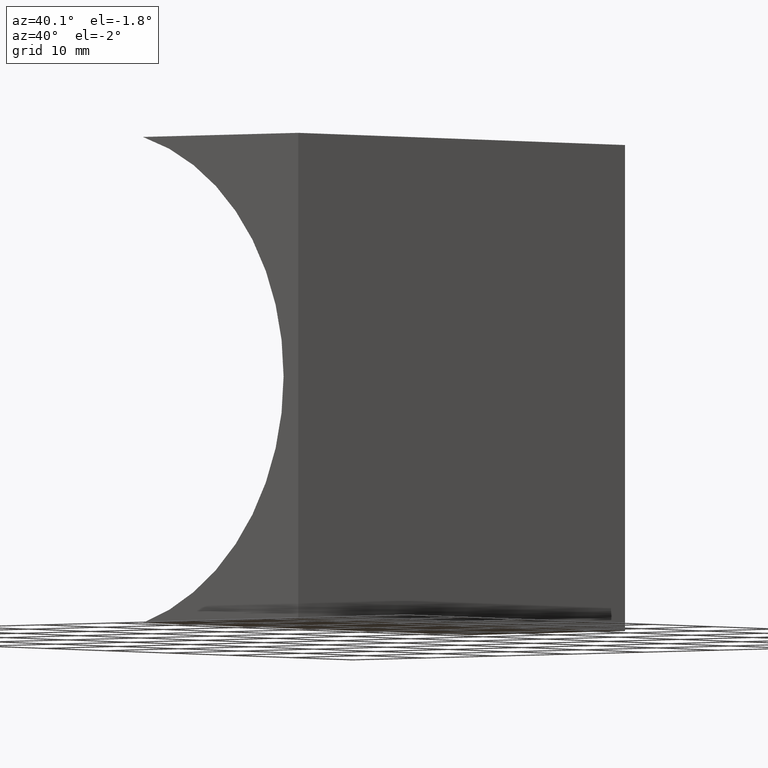
[diagram: clean part render]
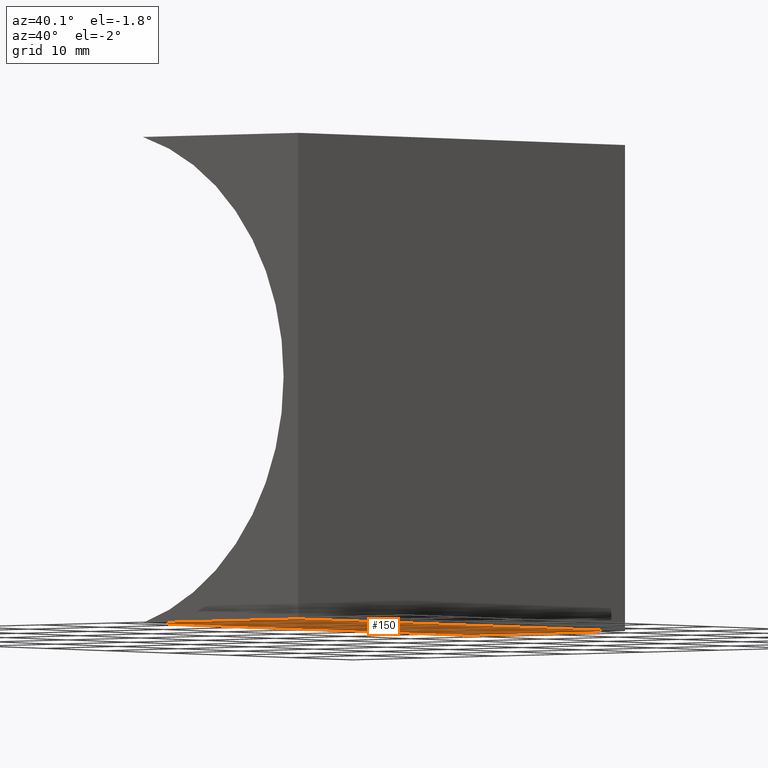
[diagram: same view with one face highlighted and labeled with its STEP entity id]
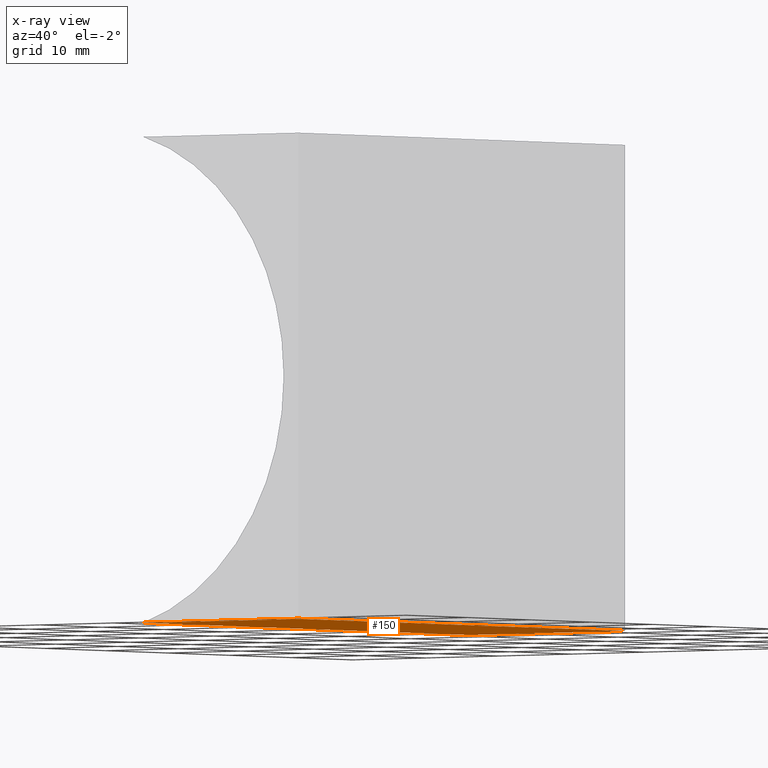
[diagram: x-ray of the same camera — body ghosted, the highlighted face saturated]
A machine part, auxiliary view. The second image highlights one B-rep face of the part: STEP entity #150.
The next image is the same camera in x-ray: the body ghosted, the highlighted face saturated — about 0% of this face is hidden behind the body in this view.
In plain terms, the highlighted planar face has unit normal (0, -0, 1).
Its self-contained STEP definition (entity closure, byte-faithful):
#6 = LINE ( 'NONE', #154, #96 ) ;
#7 = LINE ( 'NONE', #112, #59 ) ;
#28 = LINE ( 'NONE', #94, #178 ) ;
#31 = ORIENTED_EDGE ( 'NONE', *, *, #108, .F. ) ;
#46 = DIRECTION ( 'NONE',  ( -0.0000000000000000000, -1.000000000000000000, -0.0000000000000000000 ) ) ;
#51 = CARTESIAN_POINT ( 'NONE',  ( 0.0000000000000000000, 53.00000000000000000, 0.0000000000000000000 ) ) ;
#58 = VERTEX_POINT ( 'NONE', #200 ) ;
#59 = VECTOR ( 'NONE', #155, 1000.000000000000000 ) ;
#61 = VECTOR ( 'NONE', #173, 1000.000000000000000 ) ;
#69 = CARTESIAN_POINT ( 'NONE',  ( 0.0000000000000000000, 53.00000000000000000, 0.0000000000000000000 ) ) ;
#74 = EDGE_CURVE ( 'NONE', #58, #75, #7, .T. ) ;
#75 = VERTEX_POINT ( 'NONE', #143 ) ;
#94 = CARTESIAN_POINT ( 'NONE',  ( 0.0000000000000000000, 53.00000000000000000, 0.0000000000000000000 ) ) ;
#96 = VECTOR ( 'NONE', #46, 1000.000000000000000 ) ;
#99 = EDGE_CURVE ( 'NONE', #159, #135, #6, .T. ) ;
#104 = DIRECTION ( 'NONE',  ( 3.272634275190245100E-016, -0.0000000000000000000, 1.000000000000000000 ) ) ;
#108 = EDGE_CURVE ( 'NONE', #159, #58, #28, .T. ) ;
#109 = CARTESIAN_POINT ( 'NONE',  ( 0.0000000000000000000, 0.0000000000000000000, 0.0000000000000000000 ) ) ;
#112 = CARTESIAN_POINT ( 'NONE',  ( -21.20277831382138000, 53.00000000000000000, 3.469446951953614200E-015 ) ) ;
#118 = ORIENTED_EDGE ( 'NONE', *, *, #74, .F. ) ;
#120 = AXIS2_PLACEMENT_3D ( 'NONE', #51, #104, #179 ) ;
#127 = EDGE_CURVE ( 'NONE', #135, #75, #171, .T. ) ;
#128 = ORIENTED_EDGE ( 'NONE', *, *, #127, .T. ) ;
#135 = VERTEX_POINT ( 'NONE', #202 ) ;
#143 = CARTESIAN_POINT ( 'NONE',  ( -21.20277831382138000, 0.0000000000000000000, 3.469446951953614200E-015 ) ) ;
#150 = ADVANCED_FACE ( 'NONE', ( #194 ), #174, .F. ) ;
#154 = CARTESIAN_POINT ( 'NONE',  ( 0.0000000000000000000, 53.00000000000000000, 0.0000000000000000000 ) ) ;
#155 = DIRECTION ( 'NONE',  ( -0.0000000000000000000, -1.000000000000000000, -0.0000000000000000000 ) ) ;
#158 = ORIENTED_EDGE ( 'NONE', *, *, #99, .T. ) ;
#159 = VERTEX_POINT ( 'NONE', #69 ) ;
#171 = LINE ( 'NONE', #109, #61 ) ;
#173 = DIRECTION ( 'NONE',  ( -1.000000000000000000, 0.0000000000000000000, 3.272634275190245100E-016 ) ) ;
#174 = PLANE ( 'NONE',  #120 ) ;
#178 = VECTOR ( 'NONE', #185, 1000.000000000000000 ) ;
#179 = DIRECTION ( 'NONE',  ( 1.000000000000000000, 0.0000000000000000000, -3.272634275190245100E-016 ) ) ;
#185 = DIRECTION ( 'NONE',  ( -1.000000000000000000, 0.0000000000000000000, 3.272634275190245100E-016 ) ) ;
#194 = FACE_OUTER_BOUND ( 'NONE', #199, .T. ) ;
#199 = EDGE_LOOP ( 'NONE', ( #128, #118, #31, #158 ) ) ;
#200 = CARTESIAN_POINT ( 'NONE',  ( -21.20277831382138000, 53.00000000000000000, 3.469446951953614200E-015 ) ) ;
#202 = CARTESIAN_POINT ( 'NONE',  ( 0.0000000000000000000, 0.0000000000000000000, 0.0000000000000000000 ) ) ;